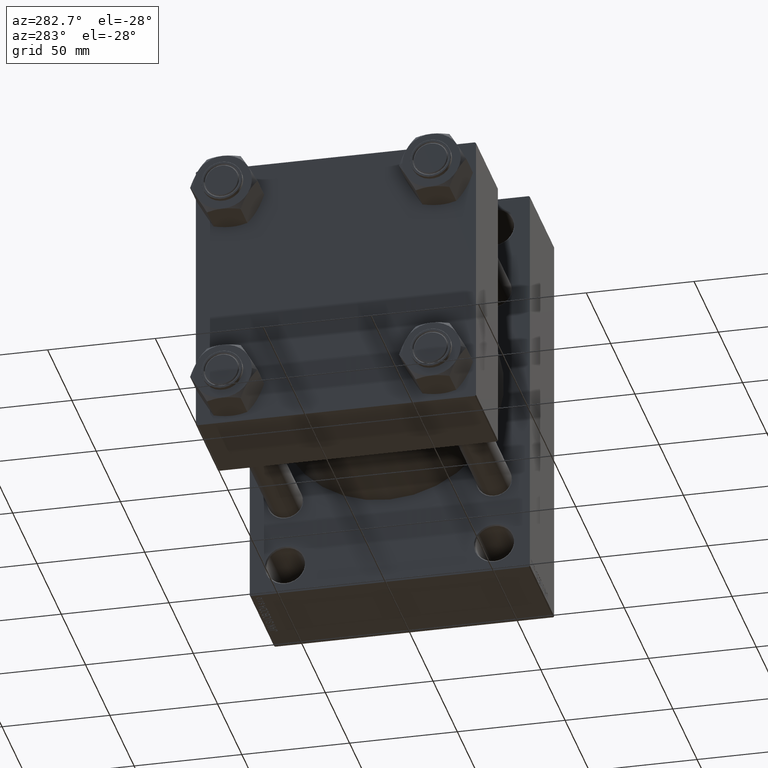
[diagram: clean part render]
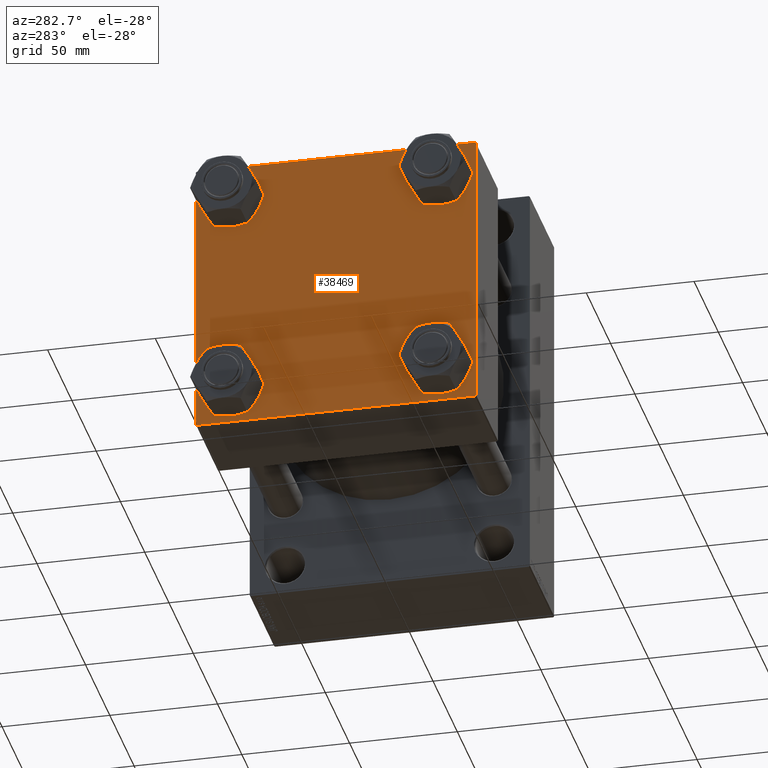
[diagram: same view with one face highlighted and labeled with its STEP entity id]
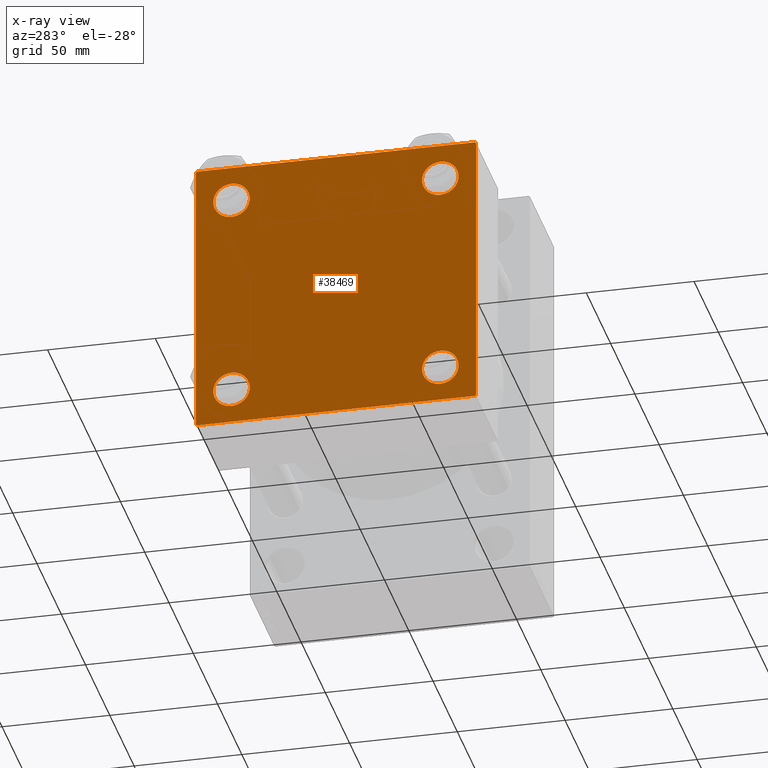
[diagram: x-ray of the same camera — body ghosted, the highlighted face saturated]
A machine part, auxiliary view. The second image highlights one B-rep face of the part: STEP entity #38469.
The next image is the same camera in x-ray: the body ghosted, the highlighted face saturated — about 0% of this face is hidden behind the body in this view.
In plain terms, the highlighted planar face has unit normal (-1, 0, 0).
Its self-contained STEP definition (entity closure, byte-faithful):
#86 = VERTEX_POINT ( 'NONE', #21264 ) ;
#262 = EDGE_LOOP ( 'NONE', ( #43664, #30954, #41516, #29114, #33820, #36713, #45322, #38397 ) ) ;
#352 = EDGE_CURVE ( 'NONE', #15721, #6803, #17518, .T. ) ;
#380 = DIRECTION ( 'NONE',  ( 1.000000000000000000, -0.000000000000000000, 0.000000000000000000 ) ) ;
#591 = CARTESIAN_POINT ( 'NONE',  ( -0.000000000000000000, -64.74999999999819522, 64.75000000000179057 ) ) ;
#647 = DIRECTION ( 'NONE',  ( 1.000000000000000000, -0.000000000000000000, 0.000000000000000000 ) ) ;
#1053 = EDGE_CURVE ( 'NONE', #34997, #43789, #44554, .T. ) ;
#1635 = VECTOR ( 'NONE', #33252, 1000.000000000000114 ) ;
#1717 = CARTESIAN_POINT ( 'NONE',  ( 0.000000000000000000, 48.45000000000000995, 39.95000000000000284 ) ) ;
#2074 = DIRECTION ( 'NONE',  ( 1.000000000000000000, -0.000000000000000000, 0.000000000000000000 ) ) ;
#2880 = VECTOR ( 'NONE', #40700, 1000.000000000000000 ) ;
#3197 = DIRECTION ( 'NONE',  ( 1.000000000000000000, -0.000000000000000000, 0.000000000000000000 ) ) ;
#3483 = DIRECTION ( 'NONE',  ( 1.000000000000000000, -0.000000000000000000, 0.000000000000000000 ) ) ;
#4359 = EDGE_CURVE ( 'NONE', #4422, #11564, #35165, .T. ) ;
#4422 = VERTEX_POINT ( 'NONE', #13124 ) ;
#5033 = CARTESIAN_POINT ( 'NONE',  ( 0.000000000000000000, 48.45000000000000995, 56.95000000000002416 ) ) ;
#5035 = FACE_BOUND ( 'NONE', #43322, .T. ) ;
#5449 = ORIENTED_EDGE ( 'NONE', *, *, #47019, .T. ) ;
#5781 = ORIENTED_EDGE ( 'NONE', *, *, #17625, .T. ) ;
#5913 = VERTEX_POINT ( 'NONE', #7121 ) ;
#6515 = DIRECTION ( 'NONE',  ( 1.000000000000000000, -0.000000000000000000, 0.000000000000000000 ) ) ;
#6803 = VERTEX_POINT ( 'NONE', #29988 ) ;
#7121 = CARTESIAN_POINT ( 'NONE',  ( 0.000000000000000000, -64.49999999999994316, -65.00000000000000000 ) ) ;
#7902 = VECTOR ( 'NONE', #27133, 1000.000000000000000 ) ;
#7939 = EDGE_CURVE ( 'NONE', #37727, #86, #43304, .T. ) ;
#8423 = FACE_OUTER_BOUND ( 'NONE', #262, .T. ) ;
#9282 = DIRECTION ( 'NONE',  ( 0.000000000000000000, 0.000000000000000000, -1.000000000000000000 ) ) ;
#9407 = DIRECTION ( 'NONE',  ( 1.000000000000000000, -0.000000000000000000, 0.000000000000000000 ) ) ;
#9540 = DIRECTION ( 'NONE',  ( 0.000000000000000000, 0.000000000000000000, 1.000000000000000000 ) ) ;
#9862 = VERTEX_POINT ( 'NONE', #16065 ) ;
#10216 = CARTESIAN_POINT ( 'NONE',  ( 0.000000000000000000, -65.00000000000000000, 65.00000000000000000 ) ) ;
#10801 = CARTESIAN_POINT ( 'NONE',  ( 0.000000000000000000, 65.00000000000000000, -64.99999999999998579 ) ) ;
#10848 = AXIS2_PLACEMENT_3D ( 'NONE', #33464, #380, #22106 ) ;
#11384 = DIRECTION ( 'NONE',  ( 0.000000000000000000, 0.000000000000000000, 1.000000000000000000 ) ) ;
#11564 = VERTEX_POINT ( 'NONE', #31170 ) ;
#11795 = FACE_BOUND ( 'NONE', #20385, .T. ) ;
#12423 = LINE ( 'NONE', #591, #7902 ) ;
#12625 = EDGE_CURVE ( 'NONE', #6803, #15721, #21520, .T. ) ;
#12908 = AXIS2_PLACEMENT_3D ( 'NONE', #36559, #3483, #44742 ) ;
#13124 = CARTESIAN_POINT ( 'NONE',  ( 0.000000000000000000, -48.44999999999999574, 39.95000000000001705 ) ) ;
#13456 = DIRECTION ( 'NONE',  ( 0.000000000000000000, -0.7071067811865279218, 0.7071067811865671127 ) ) ;
#14741 = CIRCLE ( 'NONE', #41736, 8.500000000000007105 ) ;
#14952 = EDGE_CURVE ( 'NONE', #5913, #86, #21395, .T. ) ;
#15346 = VERTEX_POINT ( 'NONE', #1717 ) ;
#15467 = VERTEX_POINT ( 'NONE', #26136 ) ;
#15721 = VERTEX_POINT ( 'NONE', #43917 ) ;
#15814 = CIRCLE ( 'NONE', #45102, 8.500000000000007105 ) ;
#16005 = EDGE_CURVE ( 'NONE', #15346, #39681, #37833, .T. ) ;
#16065 = CARTESIAN_POINT ( 'NONE',  ( 0.000000000000000000, -48.44999999999999574, -39.95000000000001705 ) ) ;
#16167 = EDGE_CURVE ( 'NONE', #38255, #45748, #44575, .T. ) ;
#17518 = CIRCLE ( 'NONE', #19839, 8.500000000000007105 ) ;
#17526 = EDGE_CURVE ( 'NONE', #45748, #5913, #18520, .T. ) ;
#17625 = EDGE_CURVE ( 'NONE', #9862, #38905, #45514, .T. ) ;
#18167 = ORIENTED_EDGE ( 'NONE', *, *, #12625, .T. ) ;
#18520 = LINE ( 'NONE', #10801, #40969 ) ;
#19283 = VECTOR ( 'NONE', #13456, 1000.000000000000000 ) ;
#19839 = AXIS2_PLACEMENT_3D ( 'NONE', #30424, #9407, #27030 ) ;
#20035 = EDGE_CURVE ( 'NONE', #34997, #15467, #20411, .T. ) ;
#20356 = EDGE_CURVE ( 'NONE', #11564, #4422, #14741, .T. ) ;
#20385 = EDGE_LOOP ( 'NONE', ( #18167, #22925 ) ) ;
#20411 = LINE ( 'NONE', #28129, #34782 ) ;
#20448 = CARTESIAN_POINT ( 'NONE',  ( 0.000000000000000000, -64.75000000000176215, -64.74999999999816680 ) ) ;
#21264 = CARTESIAN_POINT ( 'NONE',  ( 0.000000000000000000, -65.00000000000000000, -64.49999999999991473 ) ) ;
#21395 = LINE ( 'NONE', #20448, #19283 ) ;
#21472 = CARTESIAN_POINT ( 'NONE',  ( 0.000000000000000000, 65.00000000000000000, -64.49999999999995737 ) ) ;
#21520 = CIRCLE ( 'NONE', #40796, 8.500000000000007105 ) ;
#22106 = DIRECTION ( 'NONE',  ( 0.000000000000000000, 0.000000000000000000, 1.000000000000000000 ) ) ;
#22925 = ORIENTED_EDGE ( 'NONE', *, *, #352, .T. ) ;
#23574 = EDGE_CURVE ( 'NONE', #37727, #43789, #12423, .T. ) ;
#25075 = ORIENTED_EDGE ( 'NONE', *, *, #16005, .T. ) ;
#25086 = CARTESIAN_POINT ( 'NONE',  ( 0.000000000000000000, -48.44999999999999574, -56.95000000000003837 ) ) ;
#25384 = CARTESIAN_POINT ( 'NONE',  ( 0.000000000000000000, 64.49999999999997158, -64.99999999999998579 ) ) ;
#26136 = CARTESIAN_POINT ( 'NONE',  ( 0.000000000000000000, 65.00000000000000000, 64.49999999999998579 ) ) ;
#27030 = DIRECTION ( 'NONE',  ( 0.000000000000000000, 0.000000000000000000, 1.000000000000000000 ) ) ;
#27133 = DIRECTION ( 'NONE',  ( -0.000000000000000000, 0.7071067811865672237, 0.7071067811865279218 ) ) ;
#27144 = LINE ( 'NONE', #41890, #44896 ) ;
#27398 = AXIS2_PLACEMENT_3D ( 'NONE', #27486, #34744, #37631 ) ;
#27486 = CARTESIAN_POINT ( 'NONE',  ( 0.000000000000000000, 0.000000000000000000, 0.000000000000000000 ) ) ;
#28129 = CARTESIAN_POINT ( 'NONE',  ( 0.000000000000000000, 64.74999999999998579, 64.74999999999998579 ) ) ;
#28590 = CARTESIAN_POINT ( 'NONE',  ( 0.000000000000000000, 64.49999999999997158, 65.00000000000001421 ) ) ;
#29114 = ORIENTED_EDGE ( 'NONE', *, *, #14952, .T. ) ;
#29865 = AXIS2_PLACEMENT_3D ( 'NONE', #46946, #2074, #9540 ) ;
#29988 = CARTESIAN_POINT ( 'NONE',  ( 0.000000000000000000, 48.45000000000000995, -39.95000000000000284 ) ) ;
#30148 = FACE_BOUND ( 'NONE', #37117, .T. ) ;
#30424 = CARTESIAN_POINT ( 'NONE',  ( 0.000000000000000000, 48.45000000000000995, -48.45000000000001705 ) ) ;
#30881 = FACE_BOUND ( 'NONE', #32559, .T. ) ;
#30954 = ORIENTED_EDGE ( 'NONE', *, *, #16167, .T. ) ;
#31170 = CARTESIAN_POINT ( 'NONE',  ( 0.000000000000000000, -48.44999999999999574, 56.95000000000003837 ) ) ;
#31540 = DIRECTION ( 'NONE',  ( 0.000000000000000000, 0.7071067811865474617, -0.7071067811865474617 ) ) ;
#32126 = CARTESIAN_POINT ( 'NONE',  ( 0.000000000000000000, 48.45000000000000995, -48.45000000000001705 ) ) ;
#32366 = DIRECTION ( 'NONE',  ( 0.000000000000000000, 0.000000000000000000, 1.000000000000000000 ) ) ;
#32417 = EDGE_CURVE ( 'NONE', #15467, #38255, #27144, .T. ) ;
#32559 = EDGE_LOOP ( 'NONE', ( #41826, #25075 ) ) ;
#32893 = CARTESIAN_POINT ( 'NONE',  ( 0.000000000000000000, 48.45000000000000995, 48.45000000000001705 ) ) ;
#32997 = ORIENTED_EDGE ( 'NONE', *, *, #20356, .T. ) ;
#33224 = ORIENTED_EDGE ( 'NONE', *, *, #4359, .T. ) ;
#33252 = DIRECTION ( 'NONE',  ( -0.000000000000000000, -0.7071067811865474617, -0.7071067811865474617 ) ) ;
#33264 = DIRECTION ( 'NONE',  ( 0.000000000000000000, -1.000000000000000000, -1.067522139062650425E-16 ) ) ;
#33464 = CARTESIAN_POINT ( 'NONE',  ( 0.000000000000000000, 48.45000000000000995, 48.45000000000001705 ) ) ;
#33731 = CARTESIAN_POINT ( 'NONE',  ( 0.000000000000000000, -48.44999999999999574, -48.45000000000003126 ) ) ;
#33820 = ORIENTED_EDGE ( 'NONE', *, *, #7939, .F. ) ;
#33944 = CARTESIAN_POINT ( 'NONE',  ( 0.000000000000000000, -65.00000000000000000, 64.50000000000000000 ) ) ;
#34098 = CARTESIAN_POINT ( 'NONE',  ( 0.000000000000000000, -64.49999999999997158, 65.00000000000000000 ) ) ;
#34744 = DIRECTION ( 'NONE',  ( -1.000000000000000000, 0.000000000000000000, -0.000000000000000000 ) ) ;
#34782 = VECTOR ( 'NONE', #31540, 1000.000000000000114 ) ;
#34997 = VERTEX_POINT ( 'NONE', #28590 ) ;
#35165 = CIRCLE ( 'NONE', #12908, 8.500000000000007105 ) ;
#36497 = DIRECTION ( 'NONE',  ( 1.000000000000000000, -0.000000000000000000, 0.000000000000000000 ) ) ;
#36505 = DIRECTION ( 'NONE',  ( 0.000000000000000000, 0.000000000000000000, 1.000000000000000000 ) ) ;
#36559 = CARTESIAN_POINT ( 'NONE',  ( 0.000000000000000000, -48.44999999999999574, 48.45000000000003126 ) ) ;
#36713 = ORIENTED_EDGE ( 'NONE', *, *, #23574, .T. ) ;
#37117 = EDGE_LOOP ( 'NONE', ( #5781, #5449 ) ) ;
#37631 = DIRECTION ( 'NONE',  ( -0.000000000000000000, 0.000000000000000000, 1.000000000000000000 ) ) ;
#37727 = VERTEX_POINT ( 'NONE', #33944 ) ;
#37823 = DIRECTION ( 'NONE',  ( 0.000000000000000000, 0.000000000000000000, 1.000000000000000000 ) ) ;
#37833 = CIRCLE ( 'NONE', #10848, 8.500000000000007105 ) ;
#38117 = PLANE ( 'NONE',  #27398 ) ;
#38135 = EDGE_CURVE ( 'NONE', #39681, #15346, #15814, .T. ) ;
#38255 = VERTEX_POINT ( 'NONE', #21472 ) ;
#38397 = ORIENTED_EDGE ( 'NONE', *, *, #20035, .T. ) ;
#38469 = ADVANCED_FACE ( 'NONE', ( #5035, #30148, #11795, #30881, #8423 ), #38117, .T. ) ;
#38905 = VERTEX_POINT ( 'NONE', #25086 ) ;
#39681 = VERTEX_POINT ( 'NONE', #5033 ) ;
#39985 = CARTESIAN_POINT ( 'NONE',  ( 0.000000000000000000, 65.00000000000000000, 65.00000000000001421 ) ) ;
#40659 = CIRCLE ( 'NONE', #29865, 8.500000000000007105 ) ;
#40700 = DIRECTION ( 'NONE',  ( 0.000000000000000000, -1.000000000000000000, -1.067522139062650425E-16 ) ) ;
#40722 = CARTESIAN_POINT ( 'NONE',  ( 0.000000000000000000, 64.74999999999997158, -64.74999999999997158 ) ) ;
#40796 = AXIS2_PLACEMENT_3D ( 'NONE', #32126, #6515, #32366 ) ;
#40969 = VECTOR ( 'NONE', #33264, 1000.000000000000000 ) ;
#41516 = ORIENTED_EDGE ( 'NONE', *, *, #17526, .T. ) ;
#41736 = AXIS2_PLACEMENT_3D ( 'NONE', #47378, #3197, #36505 ) ;
#41826 = ORIENTED_EDGE ( 'NONE', *, *, #38135, .T. ) ;
#41890 = CARTESIAN_POINT ( 'NONE',  ( 0.000000000000000000, 65.00000000000000000, 65.00000000000001421 ) ) ;
#42829 = DIRECTION ( 'NONE',  ( 0.000000000000000000, 0.000000000000000000, -1.000000000000000000 ) ) ;
#43304 = LINE ( 'NONE', #10216, #44480 ) ;
#43322 = EDGE_LOOP ( 'NONE', ( #32997, #33224 ) ) ;
#43664 = ORIENTED_EDGE ( 'NONE', *, *, #32417, .T. ) ;
#43789 = VERTEX_POINT ( 'NONE', #34098 ) ;
#43917 = CARTESIAN_POINT ( 'NONE',  ( 0.000000000000000000, 48.45000000000000995, -56.95000000000002416 ) ) ;
#44480 = VECTOR ( 'NONE', #42829, 1000.000000000000000 ) ;
#44554 = LINE ( 'NONE', #39985, #2880 ) ;
#44575 = LINE ( 'NONE', #40722, #1635 ) ;
#44709 = AXIS2_PLACEMENT_3D ( 'NONE', #33731, #647, #37823 ) ;
#44742 = DIRECTION ( 'NONE',  ( 0.000000000000000000, 0.000000000000000000, 1.000000000000000000 ) ) ;
#44896 = VECTOR ( 'NONE', #9282, 1000.000000000000000 ) ;
#45102 = AXIS2_PLACEMENT_3D ( 'NONE', #32893, #36497, #11384 ) ;
#45322 = ORIENTED_EDGE ( 'NONE', *, *, #1053, .F. ) ;
#45514 = CIRCLE ( 'NONE', #44709, 8.500000000000007105 ) ;
#45748 = VERTEX_POINT ( 'NONE', #25384 ) ;
#46946 = CARTESIAN_POINT ( 'NONE',  ( 0.000000000000000000, -48.44999999999999574, -48.45000000000003126 ) ) ;
#47019 = EDGE_CURVE ( 'NONE', #38905, #9862, #40659, .T. ) ;
#47378 = CARTESIAN_POINT ( 'NONE',  ( 0.000000000000000000, -48.44999999999999574, 48.45000000000003126 ) ) ;